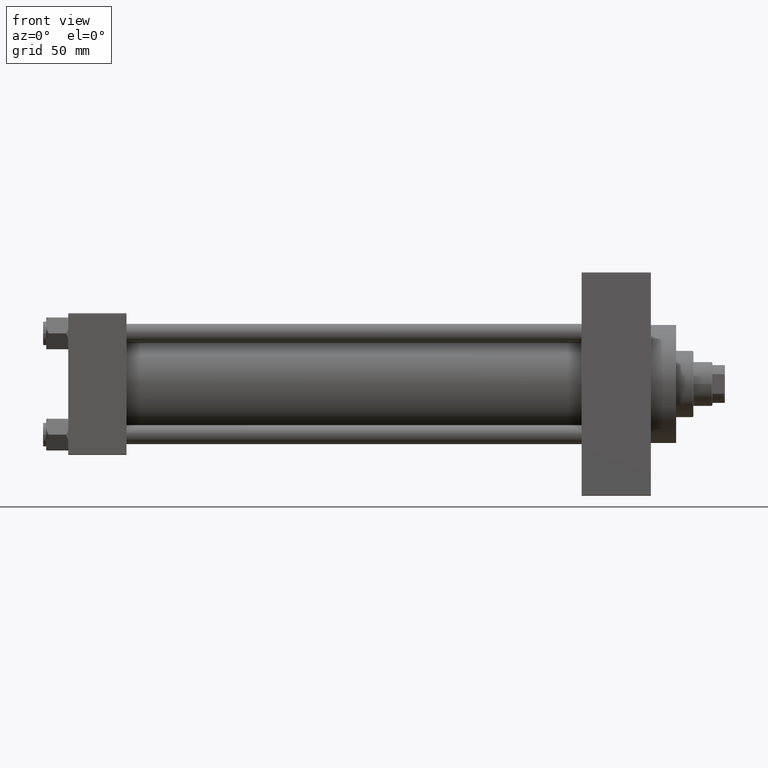
[diagram: clean part render]
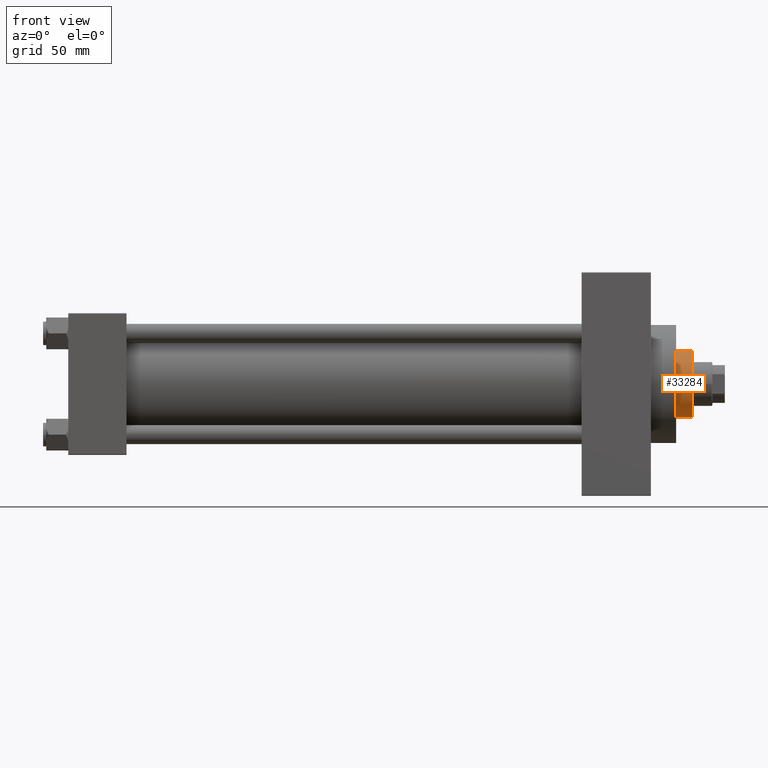
[diagram: same view with one face highlighted and labeled with its STEP entity id]
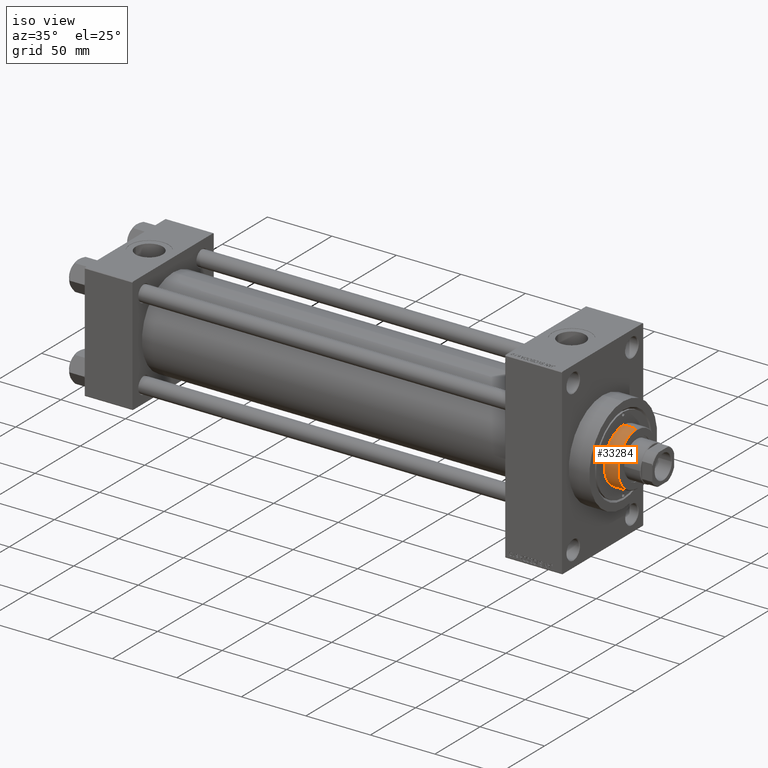
[diagram: same view with one face highlighted and labeled with its STEP entity id]
A machine part, front view. The second image highlights one B-rep face of the part: STEP entity #33284.
A second angle (iso view) of the same face is appended — the face is thin or edge-on in the first view.
In plain terms, the highlighted cylindrical surface (edge-blend (fillet) strip) has radius 21 mm, axis along (-1, 0, 0).
Its self-contained STEP definition (entity closure, byte-faithful):
#463 = LINE ( 'NONE', #29969, #44895 ) ;
#1736 = CARTESIAN_POINT ( 'NONE',  ( -21.00000000000000000, 0.000000000000000000, 54.26000000000000512 ) ) ;
#4030 = VERTEX_POINT ( 'NONE', #27670 ) ;
#4305 = DIRECTION ( 'NONE',  ( -0.000000000000000000, -0.000000000000000000, -1.000000000000000000 ) ) ;
#4744 = ORIENTED_EDGE ( 'NONE', *, *, #40380, .T. ) ;
#4974 = CYLINDRICAL_SURFACE ( 'NONE', #8078, 21.00000000000000000 ) ;
#8078 = AXIS2_PLACEMENT_3D ( 'NONE', #30380, #41401, #18889 ) ;
#10399 = CIRCLE ( 'NONE', #11156, 21.00000000000000000 ) ;
#11156 = AXIS2_PLACEMENT_3D ( 'NONE', #41302, #44196, #30053 ) ;
#12922 = EDGE_CURVE ( 'NONE', #29087, #4030, #463, .T. ) ;
#16940 = VERTEX_POINT ( 'NONE', #28176 ) ;
#18607 = CARTESIAN_POINT ( 'NONE',  ( 21.00000000000000000, 2.571758278209441661E-15, 53.76000000000001933 ) ) ;
#18889 = DIRECTION ( 'NONE',  ( -1.000000000000000000, 0.000000000000000000, 0.000000000000000000 ) ) ;
#19626 = CARTESIAN_POINT ( 'NONE',  ( -21.00000000000000000, 0.000000000000000000, 53.76000000000001933 ) ) ;
#19642 = ORIENTED_EDGE ( 'NONE', *, *, #12922, .T. ) ;
#20445 = DIRECTION ( 'NONE',  ( -0.000000000000000000, -0.000000000000000000, -1.000000000000000000 ) ) ;
#24207 = VECTOR ( 'NONE', #20445, 1000.000000000000000 ) ;
#26082 = CARTESIAN_POINT ( 'NONE',  ( 0.000000000000000000, 0.000000000000000000, 53.76000000000001933 ) ) ;
#26196 = VERTEX_POINT ( 'NONE', #19626 ) ;
#27172 = LINE ( 'NONE', #1736, #24207 ) ;
#27670 = CARTESIAN_POINT ( 'NONE',  ( 21.00000000000000000, 2.571758278209441661E-15, 43.25999999999999801 ) ) ;
#27960 = EDGE_CURVE ( 'NONE', #26196, #29087, #34585, .T. ) ;
#28176 = CARTESIAN_POINT ( 'NONE',  ( -21.00000000000000000, 0.000000000000000000, 43.25999999999999801 ) ) ;
#29087 = VERTEX_POINT ( 'NONE', #18607 ) ;
#29910 = DIRECTION ( 'NONE',  ( 1.000000000000000000, 0.000000000000000000, 0.000000000000000000 ) ) ;
#29969 = CARTESIAN_POINT ( 'NONE',  ( 21.00000000000000000, 2.571758278209441661E-15, 54.26000000000000512 ) ) ;
#30037 = EDGE_LOOP ( 'NONE', ( #40136, #19642, #4744, #43529 ) ) ;
#30053 = DIRECTION ( 'NONE',  ( 1.000000000000000000, 0.000000000000000000, 0.000000000000000000 ) ) ;
#30380 = CARTESIAN_POINT ( 'NONE',  ( 0.000000000000000000, 0.000000000000000000, 54.26000000000000512 ) ) ;
#33284 = ADVANCED_FACE ( 'NONE', ( #37093 ), #4974, .T. ) ;
#34585 = CIRCLE ( 'NONE', #41458, 21.00000000000000000 ) ;
#37093 = FACE_OUTER_BOUND ( 'NONE', #30037, .T. ) ;
#40136 = ORIENTED_EDGE ( 'NONE', *, *, #27960, .T. ) ;
#40380 = EDGE_CURVE ( 'NONE', #4030, #16940, #10399, .T. ) ;
#40452 = DIRECTION ( 'NONE',  ( 0.000000000000000000, 0.000000000000000000, -1.000000000000000000 ) ) ;
#41302 = CARTESIAN_POINT ( 'NONE',  ( 0.000000000000000000, 0.000000000000000000, 43.25999999999999801 ) ) ;
#41401 = DIRECTION ( 'NONE',  ( -0.000000000000000000, -0.000000000000000000, -1.000000000000000000 ) ) ;
#41458 = AXIS2_PLACEMENT_3D ( 'NONE', #26082, #40452, #29910 ) ;
#43196 = EDGE_CURVE ( 'NONE', #26196, #16940, #27172, .T. ) ;
#43529 = ORIENTED_EDGE ( 'NONE', *, *, #43196, .F. ) ;
#44196 = DIRECTION ( 'NONE',  ( 0.000000000000000000, 0.000000000000000000, 1.000000000000000000 ) ) ;
#44895 = VECTOR ( 'NONE', #4305, 1000.000000000000000 ) ;